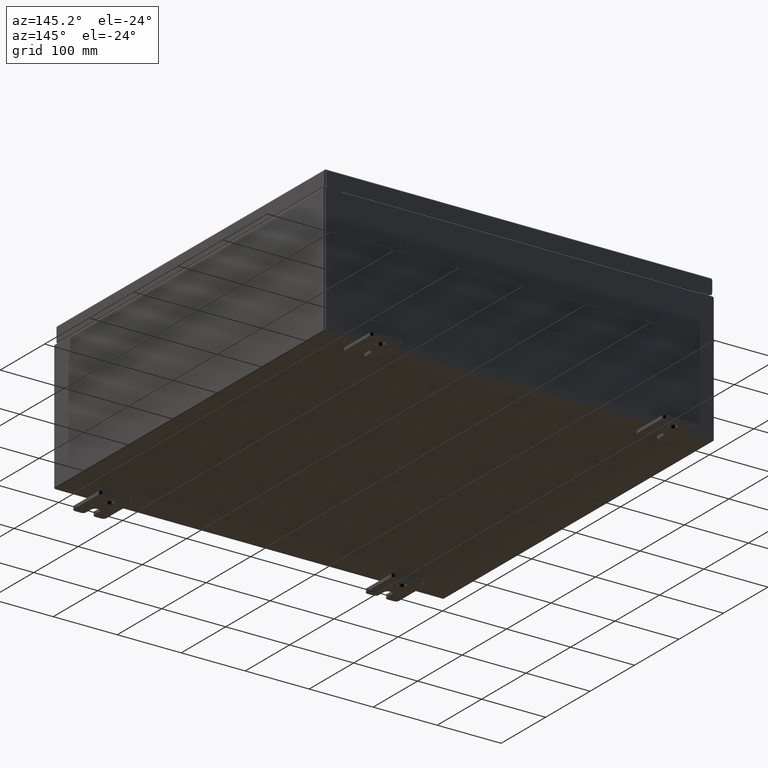
[diagram: clean part render]
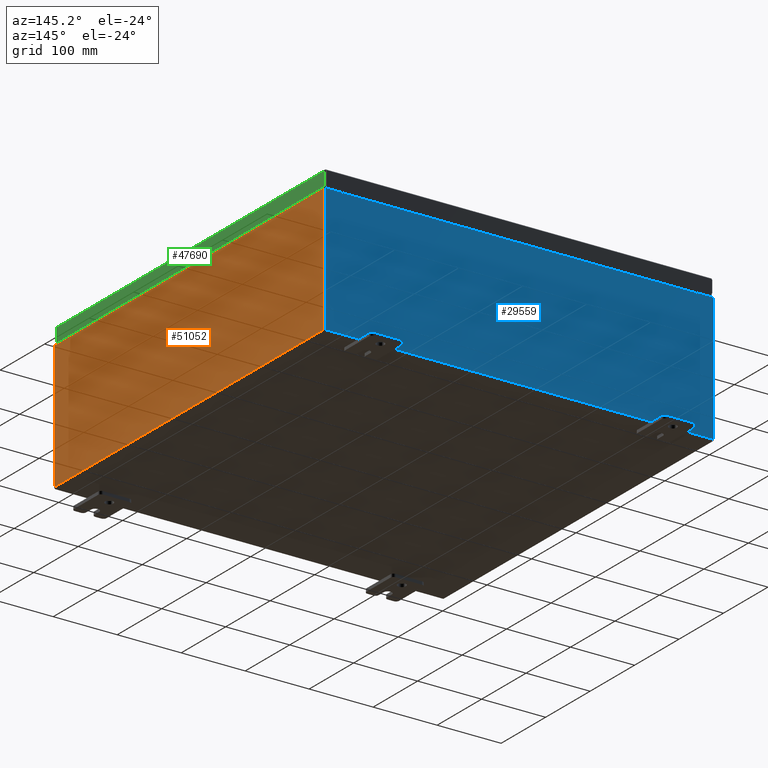
[diagram: same view with three faces highlighted in distinct colors, each labeled with its STEP entity id]
A machine part, auxiliary view with three faces highlighted in distinct colors.
Their STEP definitions:

[orange] entity #51052 — the highlighted planar face has unit normal (-1, 0, 0).
#1486 = VERTEX_POINT ( 'NONE', #45634 ) ;
#4368 = DIRECTION ( 'NONE',  ( -3.584876173029202900E-015, 0.0000000000000000000, -1.000000000000000000 ) ) ;
#7577 = EDGE_LOOP ( 'NONE', ( #47406, #24933, #18280, #36311 ) ) ;
#11382 = CARTESIAN_POINT ( 'NONE',  ( 11.99999999999999800, 11.92529999999999600, 0.01299999999999984700 ) ) ;
#12384 = EDGE_CURVE ( 'NONE', #39029, #38943, #46915, .T. ) ;
#13564 = VECTOR ( 'NONE', #49995, 39.37007874015748100 ) ;
#13936 = CARTESIAN_POINT ( 'NONE',  ( 11.99999999999999800, 0.0000000000000000000, -4.327932773236200600E-014 ) ) ;
#14148 = DIRECTION ( 'NONE',  ( 3.584876173029202900E-015, 0.0000000000000000000, 1.000000000000000000 ) ) ;
#14160 = AXIS2_PLACEMENT_3D ( 'NONE', #13936, #43571, #14148 ) ;
#17170 = EDGE_CURVE ( 'NONE', #39029, #1486, #39708, .T. ) ;
#17337 = CARTESIAN_POINT ( 'NONE',  ( 11.99999999999999800, -11.92530000000000400, 0.01299999999999984700 ) ) ;
#17373 = FACE_OUTER_BOUND ( 'NONE', #7577, .T. ) ;
#17522 = VECTOR ( 'NONE', #62333, 39.37007874015748100 ) ;
#18280 = ORIENTED_EDGE ( 'NONE', *, *, #12384, .F. ) ;
#18353 = VERTEX_POINT ( 'NONE', #48746 ) ;
#20599 = CARTESIAN_POINT ( 'NONE',  ( 11.99999999999999800, -11.92530000000000400, 0.01299999999999983600 ) ) ;
#22139 = LINE ( 'NONE', #47583, #17522 ) ;
#24933 = ORIENTED_EDGE ( 'NONE', *, *, #40716, .T. ) ;
#28807 = CARTESIAN_POINT ( 'NONE',  ( 11.99999999999999800, -11.92530000000000400, -4.327932773236200600E-014 ) ) ;
#32996 = EDGE_CURVE ( 'NONE', #1486, #18353, #22139, .T. ) ;
#33844 = VECTOR ( 'NONE', #51663, 39.37007874015748100 ) ;
#34361 = VECTOR ( 'NONE', #4368, 39.37007874015748100 ) ;
#36311 = ORIENTED_EDGE ( 'NONE', *, *, #17170, .T. ) ;
#38943 = VERTEX_POINT ( 'NONE', #20599 ) ;
#39029 = VERTEX_POINT ( 'NONE', #11382 ) ;
#39708 = LINE ( 'NONE', #59830, #13564 ) ;
#40716 = EDGE_CURVE ( 'NONE', #18353, #38943, #48946, .T. ) ;
#43571 = DIRECTION ( 'NONE',  ( -1.000000000000000000, 0.0000000000000000000, 3.584876173029202900E-015 ) ) ;
#45634 = CARTESIAN_POINT ( 'NONE',  ( 12.00000000000003000, 11.92529999999999600, 7.837599999999992100 ) ) ;
#46915 = LINE ( 'NONE', #17337, #33844 ) ;
#47406 = ORIENTED_EDGE ( 'NONE', *, *, #32996, .T. ) ;
#47583 = CARTESIAN_POINT ( 'NONE',  ( 12.00000000000003000, 11.92529999999999800, 7.837599999999992100 ) ) ;
#48746 = CARTESIAN_POINT ( 'NONE',  ( 12.00000000000002700, -11.92530000000000400, 7.837599999999998300 ) ) ;
#48946 = LINE ( 'NONE', #28807, #34361 ) ;
#49995 = DIRECTION ( 'NONE',  ( 3.584876173029202900E-015, 0.0000000000000000000, 1.000000000000000000 ) ) ;
#51052 = ADVANCED_FACE ( 'NONE', ( #17373 ), #58092, .F. ) ;
#51663 = DIRECTION ( 'NONE',  ( -0.0000000000000000000, -1.000000000000000000, -0.0000000000000000000 ) ) ;
#58092 = PLANE ( 'NONE',  #14160 ) ;
#59830 = CARTESIAN_POINT ( 'NONE',  ( 11.99999999999999800, 11.92529999999999800, -4.327932773236200600E-014 ) ) ;
#62333 = DIRECTION ( 'NONE',  ( -0.0000000000000000000, -1.000000000000000000, -0.0000000000000000000 ) ) ;

[blue] entity #29559 — the highlighted planar face has unit normal (0, -1, 0).
#655 = VERTEX_POINT ( 'NONE', #56437 ) ;
#909 = ORIENTED_EDGE ( 'NONE', *, *, #18947, .F. ) ;
#1497 = CARTESIAN_POINT ( 'NONE',  ( -10.92454999999999800, 0.0000000000000000000, 3.925299999999999600 ) ) ;
#3515 = EDGE_LOOP ( 'NONE', ( #18682, #56646, #47535, #12749, #43877, #34152, #909, #51926, #55648, #19800, #24005, #38702 ) ) ;
#3736 = LINE ( 'NONE', #19942, #29815 ) ;
#4694 = CARTESIAN_POINT ( 'NONE',  ( -11.92530000000000000, 0.0000000000000000000, 3.925299999999999600 ) ) ;
#4752 = VECTOR ( 'NONE', #7925, 39.37007874015748100 ) ;
#5046 = VECTOR ( 'NONE', #58791, 39.37007874015748100 ) ;
#6841 = LINE ( 'NONE', #62114, #36012 ) ;
#7565 = DIRECTION ( 'NONE',  ( 0.0000000000000000000, -0.0000000000000000000, -1.000000000000000000 ) ) ;
#7925 = DIRECTION ( 'NONE',  ( -1.000000000000000000, -0.0000000000000000000, -0.0000000000000000000 ) ) ;
#8053 = LINE ( 'NONE', #43264, #58646 ) ;
#8989 = LINE ( 'NONE', #17425, #59619 ) ;
#9584 = EDGE_CURVE ( 'NONE', #655, #22743, #3736, .T. ) ;
#10708 = EDGE_CURVE ( 'NONE', #35452, #42490, #29343, .T. ) ;
#12372 = AXIS2_PLACEMENT_3D ( 'NONE', #51083, #21707, #56026 ) ;
#12689 = CARTESIAN_POINT ( 'NONE',  ( -10.90587500000000000, 0.0000000000000000000, 3.874949999999999700 ) ) ;
#12749 = ORIENTED_EDGE ( 'NONE', *, *, #53511, .T. ) ;
#13046 = CARTESIAN_POINT ( 'NONE',  ( -11.92530000000000000, 0.0000000000000000000, -3.925299999999999600 ) ) ;
#13831 = DIRECTION ( 'NONE',  ( 1.000000000000000000, 0.0000000000000000000, 0.0000000000000000000 ) ) ;
#14152 = VERTEX_POINT ( 'NONE', #50979 ) ;
#15480 = CARTESIAN_POINT ( 'NONE',  ( 10.92455000000000000, 0.0000000000000000000, 3.925299999999999600 ) ) ;
#15901 = LINE ( 'NONE', #25999, #53519 ) ;
#17425 = CARTESIAN_POINT ( 'NONE',  ( -11.92530000000000000, 0.0000000000000000000, 3.925299999999999600 ) ) ;
#17618 = CARTESIAN_POINT ( 'NONE',  ( -10.88720000000000000, 1.024442997624098700E-016, 3.912299999999999700 ) ) ;
#17625 = DIRECTION ( 'NONE',  ( 0.0000000000000000000, 0.0000000000000000000, -1.000000000000000000 ) ) ;
#17685 = VECTOR ( 'NONE', #34642, 39.37007874015748100 ) ;
#18682 = ORIENTED_EDGE ( 'NONE', *, *, #57667, .F. ) ;
#18947 = EDGE_CURVE ( 'NONE', #31820, #47796, #31135, .T. ) ;
#19800 = ORIENTED_EDGE ( 'NONE', *, *, #27732, .T. ) ;
#19942 = CARTESIAN_POINT ( 'NONE',  ( -11.92530000000000000, 0.0000000000000000000, 3.925299999999999600 ) ) ;
#20138 = VECTOR ( 'NONE', #28717, 39.37007874015748100 ) ;
#21120 = CARTESIAN_POINT ( 'NONE',  ( 11.92530000000000000, 0.0000000000000000000, 3.925299999999999600 ) ) ;
#21707 = DIRECTION ( 'NONE',  ( -0.0000000000000000000, 1.000000000000000000, -0.0000000000000000000 ) ) ;
#22371 = DIRECTION ( 'NONE',  ( 1.000000000000000000, 0.0000000000000000000, 0.0000000000000000000 ) ) ;
#22743 = VERTEX_POINT ( 'NONE', #4694 ) ;
#23929 = AXIS2_PLACEMENT_3D ( 'NONE', #12689, #47055, #17625 ) ;
#24005 = ORIENTED_EDGE ( 'NONE', *, *, #9584, .T. ) ;
#24450 = CARTESIAN_POINT ( 'NONE',  ( 10.88720000000000200, 0.0000000000000000000, 3.912299999999999700 ) ) ;
#24957 = CARTESIAN_POINT ( 'NONE',  ( -11.92530000000000000, 0.0000000000000000000, 3.925299999999999600 ) ) ;
#25999 = CARTESIAN_POINT ( 'NONE',  ( 11.92530000000000000, 0.0000000000000000000, 3.925299999999999600 ) ) ;
#27573 = VERTEX_POINT ( 'NONE', #1497 ) ;
#27732 = EDGE_CURVE ( 'NONE', #14152, #655, #29284, .T. ) ;
#28329 = VERTEX_POINT ( 'NONE', #21120 ) ;
#28717 = DIRECTION ( 'NONE',  ( 0.0000000000000000000, 0.0000000000000000000, 1.000000000000000000 ) ) ;
#28933 = CARTESIAN_POINT ( 'NONE',  ( -10.92454999999999800, -0.0000000000000000000, 0.0000000000000000000 ) ) ;
#29284 = LINE ( 'NONE', #13046, #4752 ) ;
#29343 = LINE ( 'NONE', #56697, #40867 ) ;
#29559 = ADVANCED_FACE ( 'NONE', ( #56792 ), #32035, .F. ) ;
#29815 = VECTOR ( 'NONE', #49351, 39.37007874015748100 ) ;
#31135 = LINE ( 'NONE', #43428, #5046 ) ;
#31820 = VERTEX_POINT ( 'NONE', #15480 ) ;
#32035 = PLANE ( 'NONE',  #40138 ) ;
#32319 = LINE ( 'NONE', #24957, #17685 ) ;
#34152 = ORIENTED_EDGE ( 'NONE', *, *, #52503, .F. ) ;
#34642 = DIRECTION ( 'NONE',  ( 1.000000000000000000, 0.0000000000000000000, 0.0000000000000000000 ) ) ;
#34768 = LINE ( 'NONE', #28933, #20138 ) ;
#35452 = VERTEX_POINT ( 'NONE', #17618 ) ;
#36012 = VECTOR ( 'NONE', #57179, 39.37007874015748100 ) ;
#36078 = EDGE_CURVE ( 'NONE', #42490, #60064, #37332, .T. ) ;
#36402 = VERTEX_POINT ( 'NONE', #24450 ) ;
#36961 = DIRECTION ( 'NONE',  ( 0.0000000000000000000, -1.000000000000000000, 0.0000000000000000000 ) ) ;
#37233 = CARTESIAN_POINT ( 'NONE',  ( 10.92455000000000000, 0.0000000000000000000, 3.874949999999999700 ) ) ;
#37332 = CIRCLE ( 'NONE', #23929, 0.01867499999999949400 ) ;
#37793 = VERTEX_POINT ( 'NONE', #47003 ) ;
#38702 = ORIENTED_EDGE ( 'NONE', *, *, #41174, .T. ) ;
#39012 = EDGE_CURVE ( 'NONE', #28329, #14152, #15901, .T. ) ;
#39255 = CARTESIAN_POINT ( 'NONE',  ( -10.88720000000000000, -0.0000000000000000000, 3.874949999999999700 ) ) ;
#40138 = AXIS2_PLACEMENT_3D ( 'NONE', #56247, #36961, #7565 ) ;
#40867 = VECTOR ( 'NONE', #61409, 39.37007874015748100 ) ;
#41174 = EDGE_CURVE ( 'NONE', #22743, #27573, #8989, .T. ) ;
#42490 = VERTEX_POINT ( 'NONE', #39255 ) ;
#43264 = CARTESIAN_POINT ( 'NONE',  ( -10.88720000000000200, 1.024442997624098700E-016, 3.912299999999999700 ) ) ;
#43428 = CARTESIAN_POINT ( 'NONE',  ( 10.92454999999983300, -0.0000000000000000000, -4.741880436811814400E-013 ) ) ;
#43877 = ORIENTED_EDGE ( 'NONE', *, *, #62439, .F. ) ;
#47003 = CARTESIAN_POINT ( 'NONE',  ( 10.88720000000000200, 0.0000000000000000000, 3.874949999999999700 ) ) ;
#47055 = DIRECTION ( 'NONE',  ( -0.0000000000000000000, 1.000000000000000000, -0.0000000000000000000 ) ) ;
#47535 = ORIENTED_EDGE ( 'NONE', *, *, #10708, .F. ) ;
#47796 = VERTEX_POINT ( 'NONE', #37233 ) ;
#49351 = DIRECTION ( 'NONE',  ( -0.0000000000000000000, -0.0000000000000000000, 1.000000000000000000 ) ) ;
#49787 = EDGE_CURVE ( 'NONE', #31820, #28329, #32319, .T. ) ;
#50304 = CIRCLE ( 'NONE', #12372, 0.01867499999999949400 ) ;
#50979 = CARTESIAN_POINT ( 'NONE',  ( 11.92530000000000000, 0.0000000000000000000, -3.925299999999999600 ) ) ;
#51083 = CARTESIAN_POINT ( 'NONE',  ( 10.90587500000000200, 0.0000000000000000000, 3.874949999999999700 ) ) ;
#51926 = ORIENTED_EDGE ( 'NONE', *, *, #49787, .T. ) ;
#52503 = EDGE_CURVE ( 'NONE', #47796, #37793, #50304, .T. ) ;
#53511 = EDGE_CURVE ( 'NONE', #35452, #36402, #8053, .T. ) ;
#53519 = VECTOR ( 'NONE', #55357, 39.37007874015748100 ) ;
#55357 = DIRECTION ( 'NONE',  ( 0.0000000000000000000, 0.0000000000000000000, -1.000000000000000000 ) ) ;
#55648 = ORIENTED_EDGE ( 'NONE', *, *, #39012, .T. ) ;
#56026 = DIRECTION ( 'NONE',  ( 0.0000000000000000000, 0.0000000000000000000, -1.000000000000000000 ) ) ;
#56247 = CARTESIAN_POINT ( 'NONE',  ( 0.0000000000000000000, 0.0000000000000000000, 0.0000000000000000000 ) ) ;
#56437 = CARTESIAN_POINT ( 'NONE',  ( -11.92530000000000000, 0.0000000000000000000, -3.925299999999999600 ) ) ;
#56646 = ORIENTED_EDGE ( 'NONE', *, *, #36078, .F. ) ;
#56697 = CARTESIAN_POINT ( 'NONE',  ( -10.88720000000000000, -0.0000000000000000000, 0.0000000000000000000 ) ) ;
#56792 = FACE_OUTER_BOUND ( 'NONE', #3515, .T. ) ;
#57179 = DIRECTION ( 'NONE',  ( 0.0000000000000000000, 0.0000000000000000000, 1.000000000000000000 ) ) ;
#57667 = EDGE_CURVE ( 'NONE', #60064, #27573, #34768, .T. ) ;
#58646 = VECTOR ( 'NONE', #13831, 39.37007874015748100 ) ;
#58791 = DIRECTION ( 'NONE',  ( -4.340572780400004900E-014, 0.0000000000000000000, -1.000000000000000000 ) ) ;
#59410 = CARTESIAN_POINT ( 'NONE',  ( -10.92454999999999800, 0.0000000000000000000, 3.874949999999999700 ) ) ;
#59619 = VECTOR ( 'NONE', #22371, 39.37007874015748100 ) ;
#60064 = VERTEX_POINT ( 'NONE', #59410 ) ;
#61409 = DIRECTION ( 'NONE',  ( 0.0000000000000000000, 0.0000000000000000000, -1.000000000000000000 ) ) ;
#62114 = CARTESIAN_POINT ( 'NONE',  ( 10.88720000000000200, 0.0000000000000000000, 0.0000000000000000000 ) ) ;
#62439 = EDGE_CURVE ( 'NONE', #37793, #36402, #6841, .T. ) ;

[green] entity #47690 — the highlighted planar face has unit normal (1, 0, 0).
#2455 = LINE ( 'NONE', #8761, #51532 ) ;
#5569 = EDGE_CURVE ( 'NONE', #18621, #8391, #2455, .T. ) ;
#6489 = CARTESIAN_POINT ( 'NONE',  ( 11.93750000000000200, -11.93750000000000000, -0.9376999999999997600 ) ) ;
#8391 = VERTEX_POINT ( 'NONE', #22441 ) ;
#8761 = CARTESIAN_POINT ( 'NONE',  ( 11.93750000000000000, 11.84865786437626900, 1.132303121535597100E-013 ) ) ;
#8916 = EDGE_CURVE ( 'NONE', #38470, #25321, #20616, .T. ) ;
#11006 = DIRECTION ( 'NONE',  ( -2.532419924601866100E-015, -6.982962677686265900E-015, 1.000000000000000000 ) ) ;
#16825 = PLANE ( 'NONE',  #31792 ) ;
#17037 = CARTESIAN_POINT ( 'NONE',  ( 11.93750000000000000, 0.0000000000000000000, 3.049157650594635900E-014 ) ) ;
#18621 = VERTEX_POINT ( 'NONE', #21306 ) ;
#18823 = DIRECTION ( 'NONE',  ( -2.532419924601866100E-015, -6.982962677686265900E-015, 1.000000000000000000 ) ) ;
#20616 = LINE ( 'NONE', #50062, #58199 ) ;
#21306 = CARTESIAN_POINT ( 'NONE',  ( 11.93750000000000200, 11.84865786437627300, -0.9376999999999997600 ) ) ;
#22441 = CARTESIAN_POINT ( 'NONE',  ( 11.93750000000000000, 11.84865786437626800, -0.08770000000000008300 ) ) ;
#25321 = VERTEX_POINT ( 'NONE', #57291 ) ;
#26714 = EDGE_CURVE ( 'NONE', #18621, #38470, #45499, .T. ) ;
#26951 = DIRECTION ( 'NONE',  ( 1.000000000000000000, 0.0000000000000000000, 2.532419924601866100E-015 ) ) ;
#31792 = AXIS2_PLACEMENT_3D ( 'NONE', #17037, #26951, #61224 ) ;
#33228 = EDGE_LOOP ( 'NONE', ( #50349, #60091, #62175, #48325 ) ) ;
#37048 = CARTESIAN_POINT ( 'NONE',  ( 11.93750000000000200, -11.84865786437626200, -0.9376999999999997600 ) ) ;
#38470 = VERTEX_POINT ( 'NONE', #37048 ) ;
#39155 = CARTESIAN_POINT ( 'NONE',  ( 11.93750000000000000, 0.0000000000000000000, -0.08770000000000008300 ) ) ;
#43928 = FACE_OUTER_BOUND ( 'NONE', #33228, .T. ) ;
#45499 = LINE ( 'NONE', #6489, #56972 ) ;
#47690 = ADVANCED_FACE ( 'NONE', ( #43928 ), #16825, .T. ) ;
#48325 = ORIENTED_EDGE ( 'NONE', *, *, #52130, .T. ) ;
#50062 = CARTESIAN_POINT ( 'NONE',  ( 11.93750000000000000, -11.84865786437626900, -0.07469999999999980800 ) ) ;
#50349 = ORIENTED_EDGE ( 'NONE', *, *, #8916, .F. ) ;
#51532 = VECTOR ( 'NONE', #18823, 39.37007874015748100 ) ;
#52130 = EDGE_CURVE ( 'NONE', #8391, #25321, #56477, .T. ) ;
#54927 = VECTOR ( 'NONE', #63551, 39.37007874015748100 ) ;
#56477 = LINE ( 'NONE', #39155, #54927 ) ;
#56972 = VECTOR ( 'NONE', #60281, 39.37007874015748100 ) ;
#57291 = CARTESIAN_POINT ( 'NONE',  ( 11.93750000000000000, -11.84865786437626900, -0.08770000000000008300 ) ) ;
#58199 = VECTOR ( 'NONE', #11006, 39.37007874015748100 ) ;
#60091 = ORIENTED_EDGE ( 'NONE', *, *, #26714, .F. ) ;
#60281 = DIRECTION ( 'NONE',  ( 0.0000000000000000000, -1.000000000000000000, 0.0000000000000000000 ) ) ;
#61224 = DIRECTION ( 'NONE',  ( 2.532419924601866100E-015, 0.0000000000000000000, -1.000000000000000000 ) ) ;
#62175 = ORIENTED_EDGE ( 'NONE', *, *, #5569, .T. ) ;
#63551 = DIRECTION ( 'NONE',  ( 0.0000000000000000000, -1.000000000000000000, 0.0000000000000000000 ) ) ;